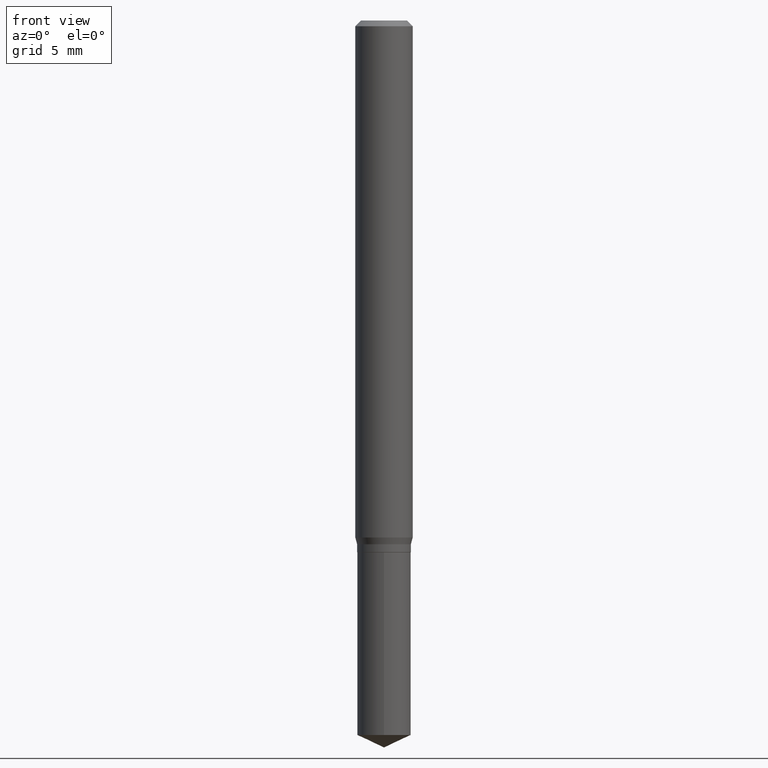
[diagram: clean part render]
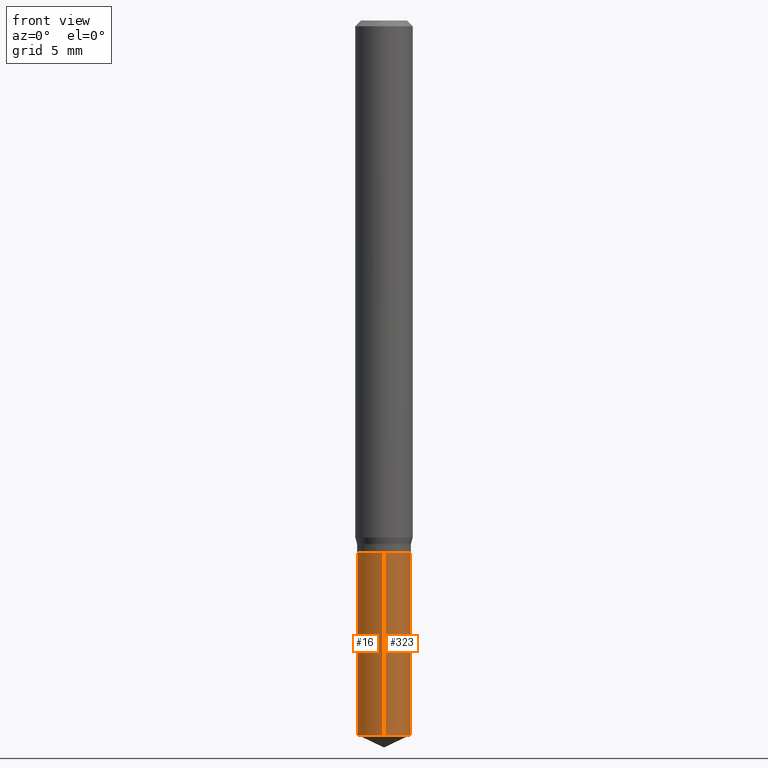
[diagram: same view with one multi-face feature highlighted, each face labeled with its STEP entity id]
A machine part, front view. The highlighted faces form ONE feature: a constant-radius fillet chain: 2 tangent blend faces with common blend radius 1.4046 mm. The faces share edges in the B-rep.
Their STEP definitions:
[1] entity #323 (Cylinder):
#9 = VERTEX_POINT ( 'NONE', #331 ) ;
#18 = CARTESIAN_POINT ( 'NONE',  ( -3.861578360760237704E-16, -0.05530000000000383220, -1.094499999999999806 ) ) ;
#20 = DIRECTION ( 'NONE',  ( -6.982962677686266711E-15, -1.000000000000000000, 2.470025310727181924E-15 ) ) ;
#26 = VERTEX_POINT ( 'NONE', #293 ) ;
#37 = ORIENTED_EDGE ( 'NONE', *, *, #225, .F. ) ;
#40 = CARTESIAN_POINT ( 'NONE',  ( -3.861578360760145013E-16, -0.05530000000000513671, -1.470313186504029090 ) ) ;
#68 = AXIS2_PLACEMENT_3D ( 'NONE', #327, #321, #20 ) ;
#86 = VERTEX_POINT ( 'NONE', #18 ) ;
#92 = CIRCLE ( 'NONE', #368, 0.05530000000000000193 ) ;
#125 = ORIENTED_EDGE ( 'NONE', *, *, #465, .F. ) ;
#138 = CARTESIAN_POINT ( 'NONE',  ( 3.595601309791772378E-29, -5.133576384662875507E-15, -1.470313186504029312 ) ) ;
#158 = DIRECTION ( 'NONE',  ( -6.982962677686266711E-15, -1.000000000000000000, 2.470025310727181924E-15 ) ) ;
#164 = AXIS2_PLACEMENT_3D ( 'NONE', #342, #453, #158 ) ;
#167 = LINE ( 'NONE', #309, #484 ) ;
#214 = ORIENTED_EDGE ( 'NONE', *, *, #242, .T. ) ;
#220 = DIRECTION ( 'NONE',  ( -2.445458899330790108E-29, 3.491495526022433205E-15, 1.000000000000000000 ) ) ;
#225 = EDGE_CURVE ( 'NONE', #316, #86, #287, .T. ) ;
#242 = EDGE_CURVE ( 'NONE', #316, #9, #92, .T. ) ;
#284 = VECTOR ( 'NONE', #404, 39.37007874015748143 ) ;
#287 = LINE ( 'NONE', #407, #284 ) ;
#293 = CARTESIAN_POINT ( 'NONE',  ( 3.929301328753713590E-16, 0.05529999999999617860, -1.094500000000000028 ) ) ;
#309 = CARTESIAN_POINT ( 'NONE',  ( 3.929301328753621392E-16, 0.05529999999999617860, -1.094500000000000028 ) ) ;
#316 = VERTEX_POINT ( 'NONE', #40 ) ;
#321 = DIRECTION ( 'NONE',  ( -2.445458899330790108E-29, 3.491495526022433205E-15, 1.000000000000000000 ) ) ;
#323 = ADVANCED_FACE ( 'NONE', ( #487 ), #414, .T. ) ;
#327 = CARTESIAN_POINT ( 'NONE',  ( 2.676565608369631794E-29, -3.821426325363822773E-15, -1.094499999999999806 ) ) ;
#331 = CARTESIAN_POINT ( 'NONE',  ( 3.929301328753713097E-16, 0.05529999999999486715, -1.470313186504029535 ) ) ;
#342 = CARTESIAN_POINT ( 'NONE',  ( 2.676565608369631794E-29, -3.821426325363822773E-15, -1.094499999999999806 ) ) ;
#367 = DIRECTION ( 'NONE',  ( -2.445458899330790108E-29, 3.491495526022433599E-15, 1.000000000000000000 ) ) ;
#368 = AXIS2_PLACEMENT_3D ( 'NONE', #138, #220, #394 ) ;
#394 = DIRECTION ( 'NONE',  ( -6.982962677686266711E-15, -1.000000000000000000, 4.940050621454363847E-15 ) ) ;
#395 = ORIENTED_EDGE ( 'NONE', *, *, #451, .T. ) ;
#398 = CIRCLE ( 'NONE', #68, 0.05530000000000000193 ) ;
#404 = DIRECTION ( 'NONE',  ( -2.445458899330790108E-29, 3.491495526022433599E-15, 1.000000000000000000 ) ) ;
#407 = CARTESIAN_POINT ( 'NONE',  ( -3.861578360760237704E-16, -0.05530000000000383220, -1.094499999999999806 ) ) ;
#414 = CYLINDRICAL_SURFACE ( 'NONE', #164, 0.05530000000000000193 ) ;
#444 = EDGE_LOOP ( 'NONE', ( #214, #395, #125, #37 ) ) ;
#451 = EDGE_CURVE ( 'NONE', #9, #26, #167, .T. ) ;
#453 = DIRECTION ( 'NONE',  ( -2.445458899330790108E-29, 3.491495526022433205E-15, 1.000000000000000000 ) ) ;
#465 = EDGE_CURVE ( 'NONE', #86, #26, #398, .T. ) ;
#484 = VECTOR ( 'NONE', #367, 39.37007874015748143 ) ;
#487 = FACE_OUTER_BOUND ( 'NONE', #444, .T. ) ;
[2] entity #16 (Cylinder):
#9 = VERTEX_POINT ( 'NONE', #331 ) ;
#16 = ADVANCED_FACE ( 'NONE', ( #75 ), #266, .T. ) ;
#18 = CARTESIAN_POINT ( 'NONE',  ( -3.861578360760237704E-16, -0.05530000000000383220, -1.094499999999999806 ) ) ;
#21 = ORIENTED_EDGE ( 'NONE', *, *, #292, .T. ) ;
#26 = VERTEX_POINT ( 'NONE', #293 ) ;
#40 = CARTESIAN_POINT ( 'NONE',  ( -3.861578360760145013E-16, -0.05530000000000513671, -1.470313186504029090 ) ) ;
#52 = EDGE_LOOP ( 'NONE', ( #289, #21, #358, #488 ) ) ;
#75 = FACE_OUTER_BOUND ( 'NONE', #52, .T. ) ;
#76 = AXIS2_PLACEMENT_3D ( 'NONE', #477, #149, #78 ) ;
#78 = DIRECTION ( 'NONE',  ( -6.982962677686266711E-15, -1.000000000000000000, 2.470025310727181924E-15 ) ) ;
#86 = VERTEX_POINT ( 'NONE', #18 ) ;
#121 = AXIS2_PLACEMENT_3D ( 'NONE', #226, #337, #411 ) ;
#149 = DIRECTION ( 'NONE',  ( -2.445458899330790108E-29, 3.491495526022433205E-15, 1.000000000000000000 ) ) ;
#167 = LINE ( 'NONE', #309, #484 ) ;
#225 = EDGE_CURVE ( 'NONE', #316, #86, #287, .T. ) ;
#226 = CARTESIAN_POINT ( 'NONE',  ( 3.595601309791772378E-29, -5.133576384662875507E-15, -1.470313186504029312 ) ) ;
#241 = DIRECTION ( 'NONE',  ( -6.982962677686266711E-15, -1.000000000000000000, 2.470025310727181924E-15 ) ) ;
#264 = CARTESIAN_POINT ( 'NONE',  ( 2.676565608369631794E-29, -3.821426325363822773E-15, -1.094499999999999806 ) ) ;
#266 = CYLINDRICAL_SURFACE ( 'NONE', #76, 0.05530000000000000193 ) ;
#284 = VECTOR ( 'NONE', #404, 39.37007874015748143 ) ;
#287 = LINE ( 'NONE', #407, #284 ) ;
#289 = ORIENTED_EDGE ( 'NONE', *, *, #451, .F. ) ;
#290 = AXIS2_PLACEMENT_3D ( 'NONE', #264, #481, #241 ) ;
#292 = EDGE_CURVE ( 'NONE', #9, #316, #330, .T. ) ;
#293 = CARTESIAN_POINT ( 'NONE',  ( 3.929301328753713590E-16, 0.05529999999999617860, -1.094500000000000028 ) ) ;
#309 = CARTESIAN_POINT ( 'NONE',  ( 3.929301328753621392E-16, 0.05529999999999617860, -1.094500000000000028 ) ) ;
#316 = VERTEX_POINT ( 'NONE', #40 ) ;
#330 = CIRCLE ( 'NONE', #121, 0.05530000000000000193 ) ;
#331 = CARTESIAN_POINT ( 'NONE',  ( 3.929301328753713097E-16, 0.05529999999999486715, -1.470313186504029535 ) ) ;
#337 = DIRECTION ( 'NONE',  ( -2.445458899330790108E-29, 3.491495526022433205E-15, 1.000000000000000000 ) ) ;
#358 = ORIENTED_EDGE ( 'NONE', *, *, #225, .T. ) ;
#367 = DIRECTION ( 'NONE',  ( -2.445458899330790108E-29, 3.491495526022433599E-15, 1.000000000000000000 ) ) ;
#376 = CIRCLE ( 'NONE', #290, 0.05530000000000000193 ) ;
#392 = EDGE_CURVE ( 'NONE', #26, #86, #376, .T. ) ;
#404 = DIRECTION ( 'NONE',  ( -2.445458899330790108E-29, 3.491495526022433599E-15, 1.000000000000000000 ) ) ;
#407 = CARTESIAN_POINT ( 'NONE',  ( -3.861578360760237704E-16, -0.05530000000000383220, -1.094499999999999806 ) ) ;
#411 = DIRECTION ( 'NONE',  ( -6.982962677686266711E-15, -1.000000000000000000, 4.940050621454363847E-15 ) ) ;
#451 = EDGE_CURVE ( 'NONE', #9, #26, #167, .T. ) ;
#477 = CARTESIAN_POINT ( 'NONE',  ( 2.676565608369631794E-29, -3.821426325363822773E-15, -1.094499999999999806 ) ) ;
#481 = DIRECTION ( 'NONE',  ( -2.445458899330790108E-29, 3.491495526022433205E-15, 1.000000000000000000 ) ) ;
#484 = VECTOR ( 'NONE', #367, 39.37007874015748143 ) ;
#488 = ORIENTED_EDGE ( 'NONE', *, *, #392, .F. ) ;